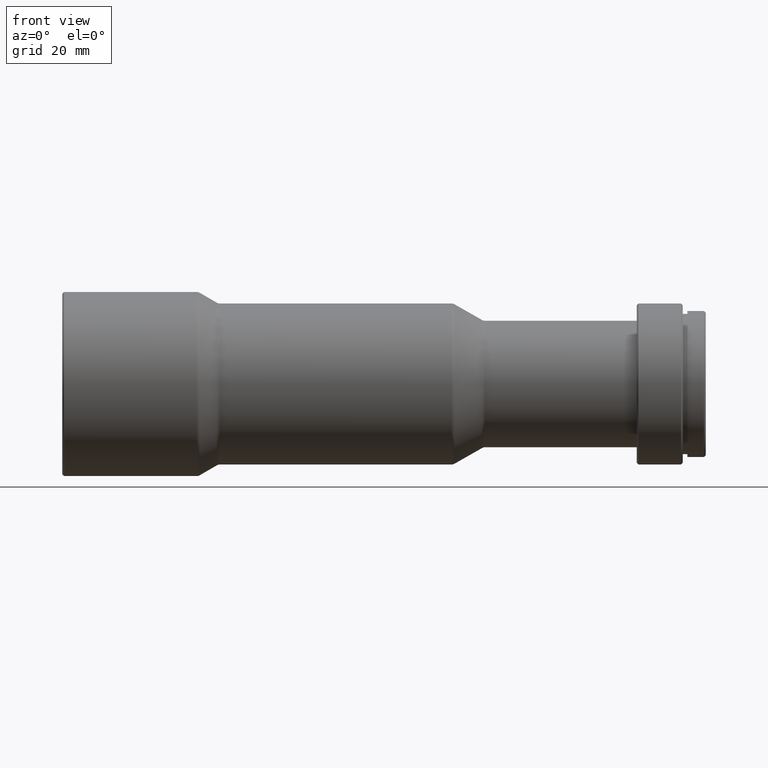
[diagram: clean part render]
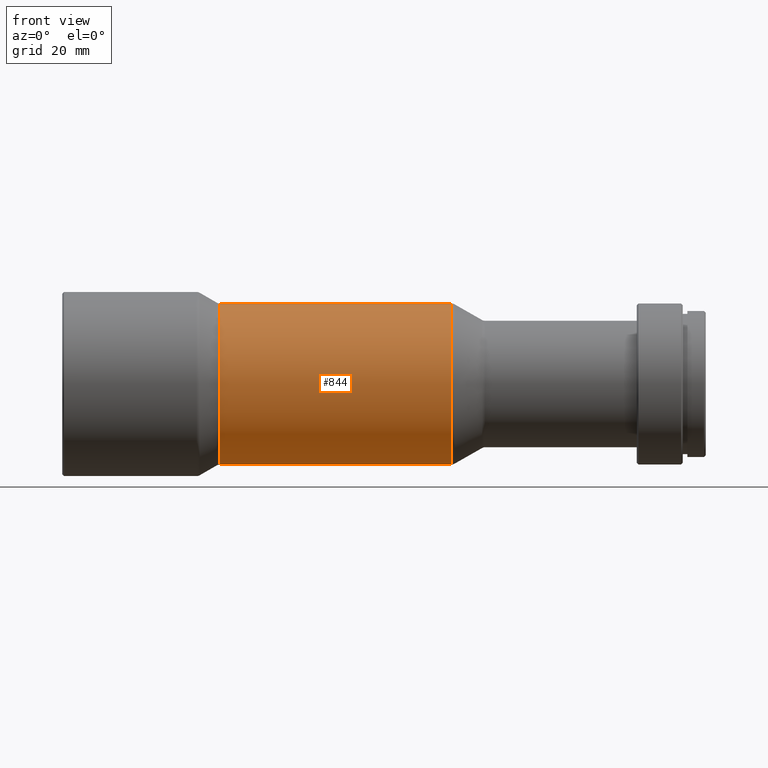
[diagram: same view with one face highlighted and labeled with its STEP entity id]
A machine part, front view. The second image highlights one B-rep face of the part: STEP entity #844.
In plain terms, the highlighted cylindrical surface (partial cylindrical patch) has radius 14 mm, axis along (-1, -0, -0).
Its self-contained STEP definition (entity closure, byte-faithful):
#9 = DIRECTION ( 'NONE',  ( -1.000000000000000000, -0.0000000000000000000, -0.0000000000000000000 ) ) ;
#32 = ORIENTED_EDGE ( 'NONE', *, *, #628, .T. ) ;
#66 = DIRECTION ( 'NONE',  ( 0.0000000000000000000, 0.0000000000000000000, 1.000000000000000000 ) ) ;
#73 = CARTESIAN_POINT ( 'NONE',  ( 67.70000000000000300, 1.714505518806294600E-015, -14.00000000000000000 ) ) ;
#93 = AXIS2_PLACEMENT_3D ( 'NONE', #1773, #9, #903 ) ;
#133 = CARTESIAN_POINT ( 'NONE',  ( 27.39999999999999900, 0.0000000000000000000, 14.00000000000000000 ) ) ;
#144 = EDGE_CURVE ( 'NONE', #533, #1253, #703, .T. ) ;
#182 = CYLINDRICAL_SURFACE ( 'NONE', #93, 14.00000000000000000 ) ;
#188 = DIRECTION ( 'NONE',  ( -1.000000000000000000, -0.0000000000000000000, -0.0000000000000000000 ) ) ;
#207 = DIRECTION ( 'NONE',  ( -1.000000000000000000, -0.0000000000000000000, -0.0000000000000000000 ) ) ;
#225 = ORIENTED_EDGE ( 'NONE', *, *, #340, .F. ) ;
#239 = VERTEX_POINT ( 'NONE', #1080 ) ;
#243 = CARTESIAN_POINT ( 'NONE',  ( 67.70000000000000300, 0.0000000000000000000, 0.0000000000000000000 ) ) ;
#304 = LINE ( 'NONE', #1695, #1324 ) ;
#340 = EDGE_CURVE ( 'NONE', #1759, #239, #1369, .T. ) ;
#343 = CARTESIAN_POINT ( 'NONE',  ( 0.0000000000000000000, 0.0000000000000000000, 14.00000000000000000 ) ) ;
#350 = EDGE_CURVE ( 'NONE', #239, #1454, #304, .T. ) ;
#367 = CARTESIAN_POINT ( 'NONE',  ( 41.20000000000001000, 0.0000000000000000000, 13.99999999999999800 ) ) ;
#413 = DIRECTION ( 'NONE',  ( -1.000000000000000000, -0.0000000000000000000, -0.0000000000000000000 ) ) ;
#423 = ORIENTED_EDGE ( 'NONE', *, *, #1443, .T. ) ;
#438 = VERTEX_POINT ( 'NONE', #815 ) ;
#473 = VECTOR ( 'NONE', #188, 1000.000000000000000 ) ;
#489 = VERTEX_POINT ( 'NONE', #1725 ) ;
#496 = LINE ( 'NONE', #343, #473 ) ;
#520 = EDGE_CURVE ( 'NONE', #937, #489, #845, .T. ) ;
#533 = VERTEX_POINT ( 'NONE', #1605 ) ;
#568 = VECTOR ( 'NONE', #741, 1000.000000000000000 ) ;
#582 = VECTOR ( 'NONE', #984, 1000.000000000000000 ) ;
#595 = ORIENTED_EDGE ( 'NONE', *, *, #1897, .T. ) ;
#615 = ORIENTED_EDGE ( 'NONE', *, *, #350, .F. ) ;
#628 = EDGE_CURVE ( 'NONE', #1759, #438, #1623, .T. ) ;
#691 = ORIENTED_EDGE ( 'NONE', *, *, #520, .F. ) ;
#703 = CIRCLE ( 'NONE', #1452, 14.00000000000000000 ) ;
#736 = CARTESIAN_POINT ( 'NONE',  ( 41.20000000000001000, 0.0000000000000000000, 13.99999999999999800 ) ) ;
#741 = DIRECTION ( 'NONE',  ( -1.000000000000000000, -0.0000000000000000000, -0.0000000000000000000 ) ) ;
#800 = EDGE_CURVE ( 'NONE', #1454, #533, #963, .T. ) ;
#815 = CARTESIAN_POINT ( 'NONE',  ( 67.70000000000000300, 0.0000000000000000000, 14.00000000000000000 ) ) ;
#844 = ADVANCED_FACE ( 'NONE', ( #1692 ), #182, .T. ) ;
#845 = LINE ( 'NONE', #736, #1305 ) ;
#903 = DIRECTION ( 'NONE',  ( 0.0000000000000000000, 0.0000000000000000000, 1.000000000000000000 ) ) ;
#937 = VERTEX_POINT ( 'NONE', #367 ) ;
#963 = LINE ( 'NONE', #1170, #568 ) ;
#968 = AXIS2_PLACEMENT_3D ( 'NONE', #243, #1661, #1247 ) ;
#973 = VECTOR ( 'NONE', #207, 1000.000000000000000 ) ;
#984 = DIRECTION ( 'NONE',  ( -1.000000000000000000, -0.0000000000000000000, -0.0000000000000000000 ) ) ;
#1080 = CARTESIAN_POINT ( 'NONE',  ( 67.20000000000000300, 0.0000000000000000000, -14.00000000000000000 ) ) ;
#1099 = ORIENTED_EDGE ( 'NONE', *, *, #800, .F. ) ;
#1170 = CARTESIAN_POINT ( 'NONE',  ( 0.0000000000000000000, 1.714505518806294600E-015, -14.00000000000000000 ) ) ;
#1186 = LINE ( 'NONE', #1831, #973 ) ;
#1247 = DIRECTION ( 'NONE',  ( 0.0000000000000000000, 0.0000000000000000000, 1.000000000000000000 ) ) ;
#1249 = DIRECTION ( 'NONE',  ( -1.000000000000000000, -0.0000000000000000000, -0.0000000000000000000 ) ) ;
#1253 = VERTEX_POINT ( 'NONE', #133 ) ;
#1305 = VECTOR ( 'NONE', #1896, 1000.000000000000000 ) ;
#1324 = VECTOR ( 'NONE', #413, 1000.000000000000000 ) ;
#1348 = CARTESIAN_POINT ( 'NONE',  ( 41.20000000000001000, 0.0000000000000000000, -14.00000000000000000 ) ) ;
#1369 = LINE ( 'NONE', #1708, #582 ) ;
#1443 = EDGE_CURVE ( 'NONE', #438, #489, #496, .T. ) ;
#1452 = AXIS2_PLACEMENT_3D ( 'NONE', #1490, #1249, #66 ) ;
#1454 = VERTEX_POINT ( 'NONE', #1348 ) ;
#1490 = CARTESIAN_POINT ( 'NONE',  ( 27.39999999999999900, 0.0000000000000000000, 0.0000000000000000000 ) ) ;
#1605 = CARTESIAN_POINT ( 'NONE',  ( 27.39999999999999900, 1.714505518806294600E-015, -14.00000000000000000 ) ) ;
#1623 = CIRCLE ( 'NONE', #968, 14.00000000000000000 ) ;
#1661 = DIRECTION ( 'NONE',  ( -1.000000000000000000, -0.0000000000000000000, -0.0000000000000000000 ) ) ;
#1692 = FACE_OUTER_BOUND ( 'NONE', #1842, .T. ) ;
#1695 = CARTESIAN_POINT ( 'NONE',  ( 41.20000000000001000, 0.0000000000000000000, -14.00000000000000000 ) ) ;
#1708 = CARTESIAN_POINT ( 'NONE',  ( 0.0000000000000000000, 1.714505518806294600E-015, -14.00000000000000000 ) ) ;
#1725 = CARTESIAN_POINT ( 'NONE',  ( 67.20000000000000300, 0.0000000000000000000, 13.99999999999999800 ) ) ;
#1759 = VERTEX_POINT ( 'NONE', #73 ) ;
#1773 = CARTESIAN_POINT ( 'NONE',  ( 0.0000000000000000000, 0.0000000000000000000, 0.0000000000000000000 ) ) ;
#1831 = CARTESIAN_POINT ( 'NONE',  ( 0.0000000000000000000, 0.0000000000000000000, 14.00000000000000000 ) ) ;
#1842 = EDGE_LOOP ( 'NONE', ( #225, #32, #423, #691, #595, #1891, #1099, #615 ) ) ;
#1891 = ORIENTED_EDGE ( 'NONE', *, *, #144, .F. ) ;
#1896 = DIRECTION ( 'NONE',  ( 1.000000000000000000, 0.0000000000000000000, 0.0000000000000000000 ) ) ;
#1897 = EDGE_CURVE ( 'NONE', #937, #1253, #1186, .T. ) ;